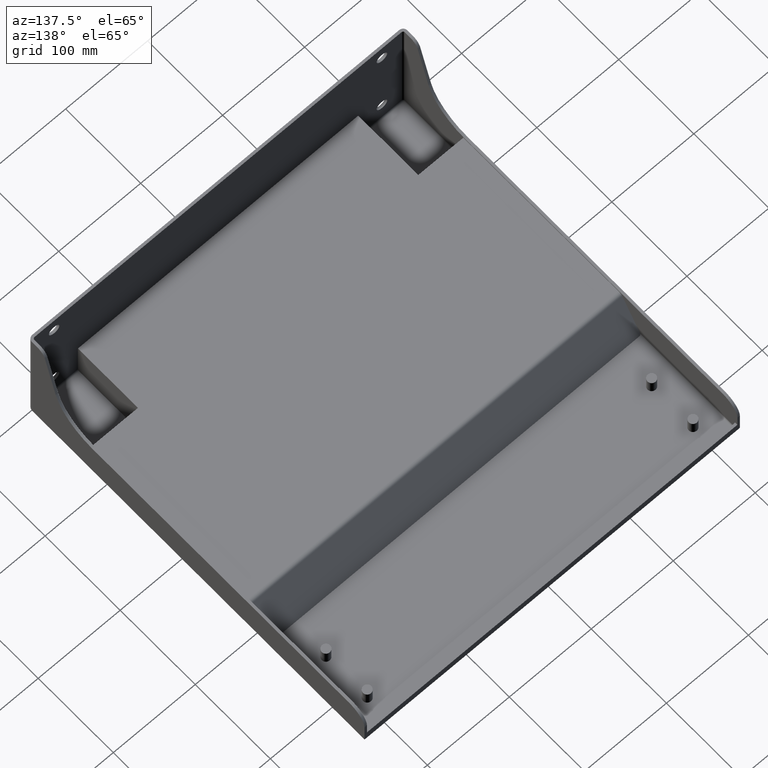
[diagram: clean part render]
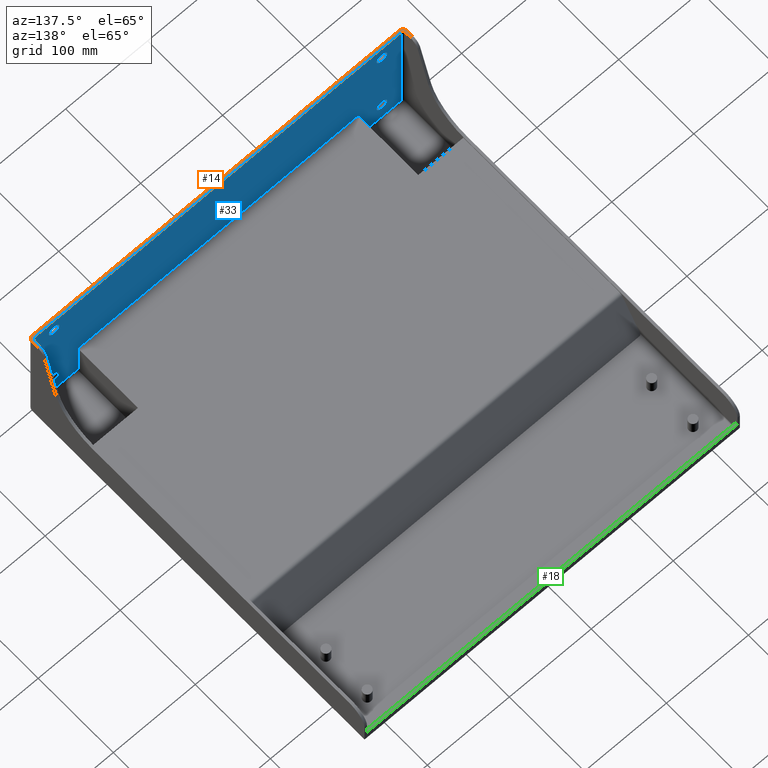
[diagram: same view with three faces highlighted in distinct colors, each labeled with its STEP entity id]
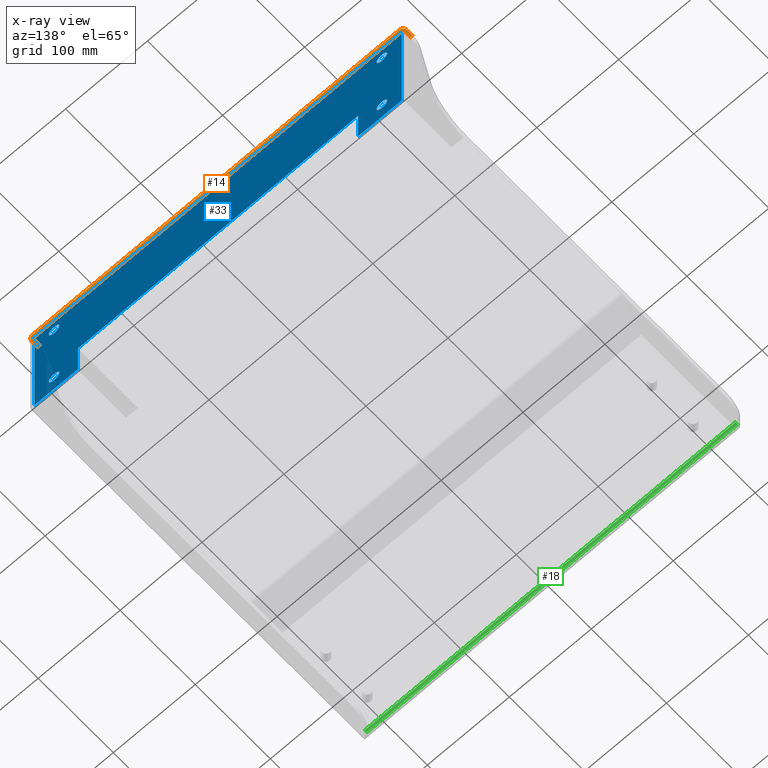
[diagram: x-ray of the same camera — body ghosted, the three highlighted faces saturated]
A machine part, auxiliary view with three faces highlighted in distinct colors.
The next image is the same camera in x-ray (body ghosted, the three faces saturated) — at least one of them is partly hidden behind the body in this view.
Their STEP definitions:

[orange] entity #14 — the highlighted planar face has unit normal (0, 0, -1).
#14 = ADVANCED_FACE ( 'NONE', ( #1697 ), #1041, .F. ) ;
#77 = EDGE_CURVE ( 'NONE', #1845, #1813, #835, .T. ) ;
#122 = CARTESIAN_POINT ( 'NONE',  ( -226.0000000000000000, 4.999999999999980500, 150.0000000000000000 ) ) ;
#125 = CARTESIAN_POINT ( 'NONE',  ( -229.0000000000000000, 12.32673012021039400, 150.0000000000000000 ) ) ;
#182 = LINE ( 'NONE', #751, #185 ) ;
#185 = VECTOR ( 'NONE', #752, 1000.000000000000000 ) ;
#230 = AXIS2_PLACEMENT_3D ( 'NONE', #1345, #1346, #1347 ) ;
#234 = AXIS2_PLACEMENT_3D ( 'NONE', #1340, #1341, #1342 ) ;
#236 = AXIS2_PLACEMENT_3D ( 'NONE', #1350, #1351, #1352 ) ;
#237 = AXIS2_PLACEMENT_3D ( 'NONE', #1355, #1356, #1357 ) ;
#251 = EDGE_CURVE ( 'NONE', #1845, #1818, #859, .T. ) ;
#252 = EDGE_CURVE ( 'NONE', #1844, #1818, #855, .T. ) ;
#253 = EDGE_CURVE ( 'NONE', #2133, #1878, #862, .T. ) ;
#254 = EDGE_CURVE ( 'NONE', #1880, #2146, #864, .T. ) ;
#255 = EDGE_CURVE ( 'NONE', #2149, #2134, #865, .T. ) ;
#256 = EDGE_CURVE ( 'NONE', #2134, #1813, #866, .T. ) ;
#357 = CARTESIAN_POINT ( 'NONE',  ( -223.9999999999998900, -1.836909530733565600E-014, 150.0000000000000000 ) ) ;
#366 = CARTESIAN_POINT ( 'NONE',  ( 229.0000000000000000, 4.999999999999980500, 150.0000000000000000 ) ) ;
#391 = CARTESIAN_POINT ( 'NONE',  ( 229.0000000000000000, 12.32673012021039400, 150.0000000000000000 ) ) ;
#392 = CARTESIAN_POINT ( 'NONE',  ( 224.0000000000000000, -1.836909530733565600E-014, 150.0000000000000000 ) ) ;
#425 = CARTESIAN_POINT ( 'NONE',  ( 224.0000000000000000, 2.999999999999981300, 149.9999999999999700 ) ) ;
#427 = CARTESIAN_POINT ( 'NONE',  ( -224.0000000000000000, 2.999999999999981300, 149.9999999999999700 ) ) ;
#429 = CARTESIAN_POINT ( 'NONE',  ( 226.0000000000000000, 12.32673012021039400, 150.0000000000000000 ) ) ;
#455 = CARTESIAN_POINT ( 'NONE',  ( -229.0000000000000000, 4.999999999999980500, 150.0000000000000000 ) ) ;
#457 = CARTESIAN_POINT ( 'NONE',  ( 226.0000000000000000, 4.999999999999980500, 150.0000000000000000 ) ) ;
#460 = CARTESIAN_POINT ( 'NONE',  ( -226.0000000000000000, 12.32673012021039400, 150.0000000000000000 ) ) ;
#478 = EDGE_CURVE ( 'NONE', #1878, #1880, #953, .T. ) ;
#498 = EDGE_CURVE ( 'NONE', #2138, #2146, #982, .T. ) ;
#511 = EDGE_CURVE ( 'NONE', #1844, #1882, #1006, .T. ) ;
#513 = EDGE_CURVE ( 'NONE', #2138, #2149, #1016, .T. ) ;
#550 = EDGE_CURVE ( 'NONE', #1882, #2133, #182, .T. ) ;
#603 = AXIS2_PLACEMENT_3D ( 'NONE', #1042, #1046, #1044 ) ;
#646 = CARTESIAN_POINT ( 'NONE',  ( 229.0000000000000000, 12.32673012021039400, 150.0000000000000000 ) ) ;
#652 = DIRECTION ( 'NONE',  ( -1.000000000000000000, 0.0000000000000000000, 0.0000000000000000000 ) ) ;
#658 = CARTESIAN_POINT ( 'NONE',  ( 229.0000000000000000, 12.32673012021039400, 150.0000000000000000 ) ) ;
#660 = DIRECTION ( 'NONE',  ( -1.000000000000000000, 0.0000000000000000000, 0.0000000000000000000 ) ) ;
#751 = CARTESIAN_POINT ( 'NONE',  ( 226.0000000000000000, 19.99999999999998200, 150.0000000000000000 ) ) ;
#752 = DIRECTION ( 'NONE',  ( 0.0000000000000000000, -1.000000000000000000, 0.0000000000000000000 ) ) ;
#835 = LINE ( 'NONE', #1316, #838 ) ;
#838 = VECTOR ( 'NONE', #1317, 1000.000000000000000 ) ;
#855 = LINE ( 'NONE', #1339, #863 ) ;
#859 = CIRCLE ( 'NONE', #234, 5.000000000000004400 ) ;
#862 = CIRCLE ( 'NONE', #230, 2.000000000000001800 ) ;
#863 = VECTOR ( 'NONE', #1334, 1000.000000000000000 ) ;
#864 = CIRCLE ( 'NONE', #236, 2.000000000000001800 ) ;
#865 = LINE ( 'NONE', #1343, #867 ) ;
#866 = CIRCLE ( 'NONE', #237, 5.000000000000004400 ) ;
#867 = VECTOR ( 'NONE', #1344, 1000.000000000000000 ) ;
#953 = LINE ( 'NONE', #1094, #955 ) ;
#955 = VECTOR ( 'NONE', #1101, 1000.000000000000000 ) ;
#982 = LINE ( 'NONE', #1152, #989 ) ;
#989 = VECTOR ( 'NONE', #1143, 1000.000000000000000 ) ;
#1006 = LINE ( 'NONE', #646, #1015 ) ;
#1015 = VECTOR ( 'NONE', #660, 1000.000000000000000 ) ;
#1016 = LINE ( 'NONE', #658, #1018 ) ;
#1018 = VECTOR ( 'NONE', #652, 1000.000000000000000 ) ;
#1041 = PLANE ( 'NONE',  #603 ) ;
#1042 = CARTESIAN_POINT ( 'NONE',  ( 229.0000000000000000, 19.99999999999998200, 150.0000000000000000 ) ) ;
#1044 = DIRECTION ( 'NONE',  ( -1.000000000000000000, 0.0000000000000000000, -0.0000000000000000000 ) ) ;
#1046 = DIRECTION ( 'NONE',  ( 0.0000000000000000000, 0.0000000000000000000, -1.000000000000000000 ) ) ;
#1094 = CARTESIAN_POINT ( 'NONE',  ( 229.0000000000000000, 2.999999999999981300, 149.9999999999999700 ) ) ;
#1101 = DIRECTION ( 'NONE',  ( -1.000000000000000000, 0.0000000000000000000, 0.0000000000000000000 ) ) ;
#1143 = DIRECTION ( 'NONE',  ( 0.0000000000000000000, -1.000000000000000000, 0.0000000000000000000 ) ) ;
#1152 = CARTESIAN_POINT ( 'NONE',  ( -226.0000000000000000, 19.99999999999998200, 150.0000000000000000 ) ) ;
#1316 = CARTESIAN_POINT ( 'NONE',  ( 229.0000000000000000, -1.836909530733565600E-014, 150.0000000000000000 ) ) ;
#1317 = DIRECTION ( 'NONE',  ( -1.000000000000000000, -0.0000000000000000000, -0.0000000000000000000 ) ) ;
#1334 = DIRECTION ( 'NONE',  ( 0.0000000000000000000, -1.000000000000000000, 0.0000000000000000000 ) ) ;
#1339 = CARTESIAN_POINT ( 'NONE',  ( 229.0000000000000000, 19.99999999999998200, 150.0000000000000000 ) ) ;
#1340 = CARTESIAN_POINT ( 'NONE',  ( 224.0000000000000000, 4.999999999999981300, 150.0000000000000000 ) ) ;
#1341 = DIRECTION ( 'NONE',  ( -0.0000000000000000000, -0.0000000000000000000, 1.000000000000000000 ) ) ;
#1342 = DIRECTION ( 'NONE',  ( -1.000000000000000000, 0.0000000000000000000, 0.0000000000000000000 ) ) ;
#1343 = CARTESIAN_POINT ( 'NONE',  ( -229.0000000000000000, 19.99999999999998200, 150.0000000000000000 ) ) ;
#1344 = DIRECTION ( 'NONE',  ( 0.0000000000000000000, -1.000000000000000000, 0.0000000000000000000 ) ) ;
#1345 = CARTESIAN_POINT ( 'NONE',  ( 224.0000000000000000, 4.999999999999981300, 150.0000000000000000 ) ) ;
#1346 = DIRECTION ( 'NONE',  ( 0.0000000000000000000, 0.0000000000000000000, -1.000000000000000000 ) ) ;
#1347 = DIRECTION ( 'NONE',  ( -1.000000000000000000, 0.0000000000000000000, 0.0000000000000000000 ) ) ;
#1350 = CARTESIAN_POINT ( 'NONE',  ( -224.0000000000000000, 4.999999999999981300, 150.0000000000000000 ) ) ;
#1351 = DIRECTION ( 'NONE',  ( 0.0000000000000000000, 0.0000000000000000000, -1.000000000000000000 ) ) ;
#1352 = DIRECTION ( 'NONE',  ( -1.000000000000000000, 0.0000000000000000000, 0.0000000000000000000 ) ) ;
#1355 = CARTESIAN_POINT ( 'NONE',  ( -224.0000000000000000, 4.999999999999981300, 150.0000000000000000 ) ) ;
#1356 = DIRECTION ( 'NONE',  ( -0.0000000000000000000, -0.0000000000000000000, 1.000000000000000000 ) ) ;
#1357 = DIRECTION ( 'NONE',  ( -1.000000000000000000, 0.0000000000000000000, 0.0000000000000000000 ) ) ;
#1605 = ORIENTED_EDGE ( 'NONE', *, *, #256, .T. ) ;
#1608 = ORIENTED_EDGE ( 'NONE', *, *, #255, .T. ) ;
#1609 = ORIENTED_EDGE ( 'NONE', *, *, #513, .T. ) ;
#1665 = EDGE_LOOP ( 'NONE', ( #2060, #2057, #2062, #2061, #2055, #2054, #2058, #2059, #2056, #1609, #1608, #1605 ) ) ;
#1697 = FACE_OUTER_BOUND ( 'NONE', #1665, .T. ) ;
#1813 = VERTEX_POINT ( 'NONE', #357 ) ;
#1818 = VERTEX_POINT ( 'NONE', #366 ) ;
#1844 = VERTEX_POINT ( 'NONE', #391 ) ;
#1845 = VERTEX_POINT ( 'NONE', #392 ) ;
#1878 = VERTEX_POINT ( 'NONE', #425 ) ;
#1880 = VERTEX_POINT ( 'NONE', #427 ) ;
#1882 = VERTEX_POINT ( 'NONE', #429 ) ;
#2054 = ORIENTED_EDGE ( 'NONE', *, *, #253, .T. ) ;
#2055 = ORIENTED_EDGE ( 'NONE', *, *, #550, .T. ) ;
#2056 = ORIENTED_EDGE ( 'NONE', *, *, #498, .F. ) ;
#2057 = ORIENTED_EDGE ( 'NONE', *, *, #251, .T. ) ;
#2058 = ORIENTED_EDGE ( 'NONE', *, *, #478, .T. ) ;
#2059 = ORIENTED_EDGE ( 'NONE', *, *, #254, .T. ) ;
#2060 = ORIENTED_EDGE ( 'NONE', *, *, #77, .F. ) ;
#2061 = ORIENTED_EDGE ( 'NONE', *, *, #511, .T. ) ;
#2062 = ORIENTED_EDGE ( 'NONE', *, *, #252, .F. ) ;
#2133 = VERTEX_POINT ( 'NONE', #457 ) ;
#2134 = VERTEX_POINT ( 'NONE', #455 ) ;
#2138 = VERTEX_POINT ( 'NONE', #460 ) ;
#2146 = VERTEX_POINT ( 'NONE', #122 ) ;
#2149 = VERTEX_POINT ( 'NONE', #125 ) ;

[blue] entity #33 — the highlighted planar face has unit normal (-0, 1, 0).
#33 = ADVANCED_FACE ( 'NONE', ( #1720, #761, #757, #1722, #759 ), #586, .T. ) ;
#83 = AXIS2_PLACEMENT_3D ( 'NONE', #1098, #1099, #1100 ) ;
#84 = AXIS2_PLACEMENT_3D ( 'NONE', #1102, #1103, #1104 ) ;
#85 = AXIS2_PLACEMENT_3D ( 'NONE', #1105, #1106, #1107 ) ;
#101 = AXIS2_PLACEMENT_3D ( 'NONE', #703, #704, #705 ) ;
#105 = AXIS2_PLACEMENT_3D ( 'NONE', #722, #723, #724 ) ;
#121 = CARTESIAN_POINT ( 'NONE',  ( 171.0000000000000300, 2.999999999999981800, 48.99999999999992900 ) ) ;
#153 = CIRCLE ( 'NONE', #105, 6.500000000000019500 ) ;
#306 = EDGE_CURVE ( 'NONE', #1857, #1867, #926, .T. ) ;
#307 = EDGE_CURVE ( 'NONE', #1851, #1866, #924, .T. ) ;
#373 = CARTESIAN_POINT ( 'NONE',  ( 200.0000000000000000, 2.999999999999996400, 23.49999999999998200 ) ) ;
#390 = CARTESIAN_POINT ( 'NONE',  ( -200.0000000000000000, 2.999999999999994700, 36.49999999999829500 ) ) ;
#398 = CARTESIAN_POINT ( 'NONE',  ( -200.0000000000003400, 2.999999999999984500, 123.4999999999972100 ) ) ;
#404 = CARTESIAN_POINT ( 'NONE',  ( 200.0000000000000000, 2.999999999999984500, 123.5000000000003700 ) ) ;
#413 = CARTESIAN_POINT ( 'NONE',  ( -200.0000000000003400, 2.999999999999982700, 136.4999999999972400 ) ) ;
#414 = CARTESIAN_POINT ( 'NONE',  ( 200.0000000000000000, 2.999999999999982700, 136.4999999999997200 ) ) ;
#415 = CARTESIAN_POINT ( 'NONE',  ( 200.0000000000000000, 2.999999999999994700, 36.50000000000002100 ) ) ;
#420 = CARTESIAN_POINT ( 'NONE',  ( -170.9999999999999700, 3.000000000000002700, 48.99999999999992900 ) ) ;
#424 = CARTESIAN_POINT ( 'NONE',  ( -170.9999999999999700, 3.000000000000002700, 5.000000000000004400 ) ) ;
#425 = CARTESIAN_POINT ( 'NONE',  ( 224.0000000000000000, 2.999999999999981300, 149.9999999999999700 ) ) ;
#427 = CARTESIAN_POINT ( 'NONE',  ( -224.0000000000000000, 2.999999999999981300, 149.9999999999999700 ) ) ;
#430 = CARTESIAN_POINT ( 'NONE',  ( 224.0000000000000000, 2.999999999999999100, 4.999999999999998200 ) ) ;
#431 = CARTESIAN_POINT ( 'NONE',  ( 171.0000000000000300, 2.999999999999981800, 5.000000000000004400 ) ) ;
#433 = CARTESIAN_POINT ( 'NONE',  ( -224.0000000000000000, 2.999999999999999100, 4.999999999999998200 ) ) ;
#453 = CARTESIAN_POINT ( 'NONE',  ( -200.0000000000000000, 2.999999999999996400, 23.49999999999915400 ) ) ;
#471 = EDGE_CURVE ( 'NONE', #2145, #1873, #942, .T. ) ;
#474 = EDGE_CURVE ( 'NONE', #1868, #1826, #948, .T. ) ;
#475 = EDGE_CURVE ( 'NONE', #1843, #2130, #950, .T. ) ;
#476 = EDGE_CURVE ( 'NONE', #1867, #1857, #944, .T. ) ;
#477 = EDGE_CURVE ( 'NONE', #1866, #1851, #951, .T. ) ;
#478 = EDGE_CURVE ( 'NONE', #1878, #1880, #953, .T. ) ;
#479 = EDGE_CURVE ( 'NONE', #1878, #1883, #954, .T. ) ;
#480 = EDGE_CURVE ( 'NONE', #1883, #1884, #956, .T. ) ;
#481 = EDGE_CURVE ( 'NONE', #2145, #1884, #958, .T. ) ;
#482 = EDGE_CURVE ( 'NONE', #1873, #1877, #960, .T. ) ;
#483 = EDGE_CURVE ( 'NONE', #1877, #1886, #962, .T. ) ;
#484 = EDGE_CURVE ( 'NONE', #1886, #1880, #964, .T. ) ;
#529 = EDGE_CURVE ( 'NONE', #2130, #1843, #1038, .T. ) ;
#535 = EDGE_CURVE ( 'NONE', #1826, #1868, #153, .T. ) ;
#586 = PLANE ( 'NONE',  #622 ) ;
#587 = DIRECTION ( 'NONE',  ( 0.0000000000000000000, -1.224606353822377500E-016, 1.000000000000000000 ) ) ;
#589 = DIRECTION ( 'NONE',  ( -0.0000000000000000000, 1.000000000000000000, 1.224606353822377500E-016 ) ) ;
#599 = CARTESIAN_POINT ( 'NONE',  ( 229.0000000000000000, 2.999999999999999600, 3.673819061467131800E-016 ) ) ;
#622 = AXIS2_PLACEMENT_3D ( 'NONE', #599, #589, #587 ) ;
#703 = CARTESIAN_POINT ( 'NONE',  ( -200.0000000000000000, 2.999999999999995600, 29.99999999999872500 ) ) ;
#704 = DIRECTION ( 'NONE',  ( -0.0000000000000000000, 1.000000000000000000, 1.224606353822377500E-016 ) ) ;
#705 = DIRECTION ( 'NONE',  ( 0.0000000000000000000, -1.334402673828401100E-016, 1.000000000000000000 ) ) ;
#722 = CARTESIAN_POINT ( 'NONE',  ( 200.0000000000000000, 2.999999999999995600, 30.00000000000000000 ) ) ;
#723 = DIRECTION ( 'NONE',  ( -0.0000000000000000000, 1.000000000000000000, 1.224606353822377500E-016 ) ) ;
#724 = DIRECTION ( 'NONE',  ( 0.0000000000000000000, -1.334402673828309100E-016, 1.000000000000000000 ) ) ;
#757 = FACE_BOUND ( 'NONE', #1613, .T. ) ;
#759 = FACE_OUTER_BOUND ( 'NONE', #1388, .T. ) ;
#761 = FACE_BOUND ( 'NONE', #1401, .T. ) ;
#924 = CIRCLE ( 'NONE', #1555, 6.500000000000005300 ) ;
#926 = CIRCLE ( 'NONE', #1554, 6.499999999999673200 ) ;
#942 = LINE ( 'NONE', #1089, #945 ) ;
#944 = CIRCLE ( 'NONE', #84, 6.499999999999673200 ) ;
#945 = VECTOR ( 'NONE', #1090, 1000.000000000000000 ) ;
#948 = CIRCLE ( 'NONE', #1557, 6.500000000000019500 ) ;
#950 = CIRCLE ( 'NONE', #83, 6.499999999999571900 ) ;
#951 = CIRCLE ( 'NONE', #85, 6.500000000000005300 ) ;
#953 = LINE ( 'NONE', #1094, #955 ) ;
#954 = LINE ( 'NONE', #1108, #957 ) ;
#955 = VECTOR ( 'NONE', #1101, 1000.000000000000000 ) ;
#956 = LINE ( 'NONE', #1110, #959 ) ;
#957 = VECTOR ( 'NONE', #1109, 1000.000000000000000 ) ;
#958 = LINE ( 'NONE', #1112, #961 ) ;
#959 = VECTOR ( 'NONE', #1111, 1000.000000000000000 ) ;
#960 = LINE ( 'NONE', #1114, #963 ) ;
#961 = VECTOR ( 'NONE', #1113, 1000.000000000000000 ) ;
#962 = LINE ( 'NONE', #1116, #965 ) ;
#963 = VECTOR ( 'NONE', #1115, 1000.000000000000000 ) ;
#964 = LINE ( 'NONE', #1118, #967 ) ;
#965 = VECTOR ( 'NONE', #1117, 1000.000000000000000 ) ;
#967 = VECTOR ( 'NONE', #1119, 1000.000000000000000 ) ;
#1038 = CIRCLE ( 'NONE', #101, 6.499999999999571900 ) ;
#1066 = CARTESIAN_POINT ( 'NONE',  ( 200.0000000000000000, 2.999999999999983600, 130.0000000000000300 ) ) ;
#1067 = DIRECTION ( 'NONE',  ( -0.0000000000000000000, 1.000000000000000000, 1.224606353822377500E-016 ) ) ;
#1068 = DIRECTION ( 'NONE',  ( 0.0000000000000000000, -1.334402673828380100E-016, 1.000000000000000000 ) ) ;
#1071 = CARTESIAN_POINT ( 'NONE',  ( -200.0000000000003400, 2.999999999999983600, 129.9999999999972100 ) ) ;
#1072 = DIRECTION ( 'NONE',  ( -0.0000000000000000000, 1.000000000000000000, 1.224606353822377500E-016 ) ) ;
#1073 = DIRECTION ( 'NONE',  ( 0.0000000000000000000, -1.334402673828312100E-016, 1.000000000000000000 ) ) ;
#1089 = CARTESIAN_POINT ( 'NONE',  ( -170.9999999999999700, 3.000000000000002700, 48.99999999999992900 ) ) ;
#1090 = DIRECTION ( 'NONE',  ( -1.000000000000000000, 6.086749038515113000E-017, 8.421689120843096600E-033 ) ) ;
#1094 = CARTESIAN_POINT ( 'NONE',  ( 229.0000000000000000, 2.999999999999981300, 149.9999999999999700 ) ) ;
#1095 = CARTESIAN_POINT ( 'NONE',  ( 200.0000000000000000, 2.999999999999995600, 30.00000000000000000 ) ) ;
#1096 = DIRECTION ( 'NONE',  ( -0.0000000000000000000, 1.000000000000000000, 1.224606353822377500E-016 ) ) ;
#1097 = DIRECTION ( 'NONE',  ( 0.0000000000000000000, -1.334402673828309100E-016, 1.000000000000000000 ) ) ;
#1098 = CARTESIAN_POINT ( 'NONE',  ( -200.0000000000000000, 2.999999999999995600, 29.99999999999872500 ) ) ;
#1099 = DIRECTION ( 'NONE',  ( -0.0000000000000000000, 1.000000000000000000, 1.224606353822377500E-016 ) ) ;
#1100 = DIRECTION ( 'NONE',  ( 0.0000000000000000000, -1.334402673828401100E-016, 1.000000000000000000 ) ) ;
#1101 = DIRECTION ( 'NONE',  ( -1.000000000000000000, 0.0000000000000000000, 0.0000000000000000000 ) ) ;
#1102 = CARTESIAN_POINT ( 'NONE',  ( 200.0000000000000000, 2.999999999999983600, 130.0000000000000300 ) ) ;
#1103 = DIRECTION ( 'NONE',  ( -0.0000000000000000000, 1.000000000000000000, 1.224606353822377500E-016 ) ) ;
#1104 = DIRECTION ( 'NONE',  ( 0.0000000000000000000, -1.334402673828380100E-016, 1.000000000000000000 ) ) ;
#1105 = CARTESIAN_POINT ( 'NONE',  ( -200.0000000000003400, 2.999999999999983600, 129.9999999999972100 ) ) ;
#1106 = DIRECTION ( 'NONE',  ( -0.0000000000000000000, 1.000000000000000000, 1.224606353822377500E-016 ) ) ;
#1107 = DIRECTION ( 'NONE',  ( 0.0000000000000000000, -1.334402673828312100E-016, 1.000000000000000000 ) ) ;
#1108 = CARTESIAN_POINT ( 'NONE',  ( 224.0000000000000000, 2.999999999999999600, 3.673819061467131800E-016 ) ) ;
#1109 = DIRECTION ( 'NONE',  ( 0.0000000000000000000, 1.224606353822377500E-016, -1.000000000000000000 ) ) ;
#1110 = CARTESIAN_POINT ( 'NONE',  ( 171.0000000000000300, 2.999999999999999100, 4.999999999999998200 ) ) ;
#1111 = DIRECTION ( 'NONE',  ( -1.000000000000000000, 0.0000000000000000000, 0.0000000000000000000 ) ) ;
#1112 = CARTESIAN_POINT ( 'NONE',  ( 171.0000000000000300, 2.999999999999981800, 603.8086312075680600 ) ) ;
#1113 = DIRECTION ( 'NONE',  ( -0.0000000000000000000, -0.0000000000000000000, -1.000000000000000000 ) ) ;
#1114 = CARTESIAN_POINT ( 'NONE',  ( -170.9999999999999700, 3.000000000000002700, 603.8086312075680600 ) ) ;
#1115 = DIRECTION ( 'NONE',  ( -0.0000000000000000000, -0.0000000000000000000, -1.000000000000000000 ) ) ;
#1116 = CARTESIAN_POINT ( 'NONE',  ( -226.0000000000000000, 2.999999999999999100, 4.999999999999998200 ) ) ;
#1117 = DIRECTION ( 'NONE',  ( -1.000000000000000000, 0.0000000000000000000, 0.0000000000000000000 ) ) ;
#1118 = CARTESIAN_POINT ( 'NONE',  ( -224.0000000000000000, 2.999999999999981300, 150.0000000000000000 ) ) ;
#1119 = DIRECTION ( 'NONE',  ( -0.0000000000000000000, -1.224606353822377500E-016, 1.000000000000000000 ) ) ;
#1388 = EDGE_LOOP ( 'NONE', ( #1939, #1919, #1931, #1937, #1922, #1928, #1920, #1943 ) ) ;
#1401 = EDGE_LOOP ( 'NONE', ( #2008, #1938 ) ) ;
#1437 = EDGE_LOOP ( 'NONE', ( #1941, #1934 ) ) ;
#1554 = AXIS2_PLACEMENT_3D ( 'NONE', #1066, #1067, #1068 ) ;
#1555 = AXIS2_PLACEMENT_3D ( 'NONE', #1071, #1072, #1073 ) ;
#1557 = AXIS2_PLACEMENT_3D ( 'NONE', #1095, #1096, #1097 ) ;
#1613 = EDGE_LOOP ( 'NONE', ( #1940, #1930 ) ) ;
#1720 = FACE_BOUND ( 'NONE', #2125, .T. ) ;
#1722 = FACE_BOUND ( 'NONE', #1437, .T. ) ;
#1826 = VERTEX_POINT ( 'NONE', #373 ) ;
#1843 = VERTEX_POINT ( 'NONE', #390 ) ;
#1851 = VERTEX_POINT ( 'NONE', #398 ) ;
#1857 = VERTEX_POINT ( 'NONE', #404 ) ;
#1866 = VERTEX_POINT ( 'NONE', #413 ) ;
#1867 = VERTEX_POINT ( 'NONE', #414 ) ;
#1868 = VERTEX_POINT ( 'NONE', #415 ) ;
#1873 = VERTEX_POINT ( 'NONE', #420 ) ;
#1877 = VERTEX_POINT ( 'NONE', #424 ) ;
#1878 = VERTEX_POINT ( 'NONE', #425 ) ;
#1880 = VERTEX_POINT ( 'NONE', #427 ) ;
#1883 = VERTEX_POINT ( 'NONE', #430 ) ;
#1884 = VERTEX_POINT ( 'NONE', #431 ) ;
#1886 = VERTEX_POINT ( 'NONE', #433 ) ;
#1919 = ORIENTED_EDGE ( 'NONE', *, *, #479, .T. ) ;
#1920 = ORIENTED_EDGE ( 'NONE', *, *, #483, .T. ) ;
#1922 = ORIENTED_EDGE ( 'NONE', *, *, #471, .T. ) ;
#1928 = ORIENTED_EDGE ( 'NONE', *, *, #482, .T. ) ;
#1930 = ORIENTED_EDGE ( 'NONE', *, *, #476, .F. ) ;
#1931 = ORIENTED_EDGE ( 'NONE', *, *, #480, .T. ) ;
#1934 = ORIENTED_EDGE ( 'NONE', *, *, #477, .F. ) ;
#1937 = ORIENTED_EDGE ( 'NONE', *, *, #481, .F. ) ;
#1938 = ORIENTED_EDGE ( 'NONE', *, *, #475, .F. ) ;
#1939 = ORIENTED_EDGE ( 'NONE', *, *, #478, .F. ) ;
#1940 = ORIENTED_EDGE ( 'NONE', *, *, #306, .F. ) ;
#1941 = ORIENTED_EDGE ( 'NONE', *, *, #307, .F. ) ;
#1943 = ORIENTED_EDGE ( 'NONE', *, *, #484, .T. ) ;
#2008 = ORIENTED_EDGE ( 'NONE', *, *, #529, .F. ) ;
#2019 = ORIENTED_EDGE ( 'NONE', *, *, #535, .F. ) ;
#2035 = ORIENTED_EDGE ( 'NONE', *, *, #474, .F. ) ;
#2125 = EDGE_LOOP ( 'NONE', ( #2019, #2035 ) ) ;
#2130 = VERTEX_POINT ( 'NONE', #453 ) ;
#2145 = VERTEX_POINT ( 'NONE', #121 ) ;

[green] entity #18 — the highlighted planar face has unit normal (0, -0, 1).
#18 = ADVANCED_FACE ( 'NONE', ( #1692 ), #1960, .T. ) ;
#124 = CARTESIAN_POINT ( 'NONE',  ( -226.0000000000000000, 445.0000000000000000, 15.00000000000000400 ) ) ;
#193 = LINE ( 'NONE', #330, #196 ) ;
#196 = VECTOR ( 'NONE', #331, 1000.000000000000000 ) ;
#202 = LINE ( 'NONE', #340, #205 ) ;
#205 = VECTOR ( 'NONE', #341, 1000.000000000000000 ) ;
#248 = EDGE_CURVE ( 'NONE', #2132, #1819, #853, .T. ) ;
#330 = CARTESIAN_POINT ( 'NONE',  ( 226.0000000000000000, 445.0000000000000000, 15.00000000000000400 ) ) ;
#331 = DIRECTION ( 'NONE',  ( 0.0000000000000000000, 1.000000000000000000, 0.0000000000000000000 ) ) ;
#340 = CARTESIAN_POINT ( 'NONE',  ( -226.0000000000000000, 448.0000000000000000, 15.00000000000000400 ) ) ;
#341 = DIRECTION ( 'NONE',  ( 0.0000000000000000000, -1.000000000000000000, 0.0000000000000000000 ) ) ;
#367 = CARTESIAN_POINT ( 'NONE',  ( -226.0000000000000000, 448.0000000000000000, 15.00000000000000400 ) ) ;
#445 = CARTESIAN_POINT ( 'NONE',  ( 226.0000000000000000, 445.0000000000000000, 15.00000000000000400 ) ) ;
#454 = CARTESIAN_POINT ( 'NONE',  ( 226.0000000000000000, 448.0000000000000000, 15.00000000000000400 ) ) ;
#503 = EDGE_CURVE ( 'NONE', #2148, #1898, #987, .T. ) ;
#557 = EDGE_CURVE ( 'NONE', #1898, #2132, #193, .T. ) ;
#562 = EDGE_CURVE ( 'NONE', #1819, #2148, #202, .T. ) ;
#607 = AXIS2_PLACEMENT_3D ( 'NONE', #1969, #1980, #1978 ) ;
#853 = LINE ( 'NONE', #1333, #856 ) ;
#856 = VECTOR ( 'NONE', #1335, 1000.000000000000000 ) ;
#987 = LINE ( 'NONE', #1150, #999 ) ;
#999 = VECTOR ( 'NONE', #1165, 1000.000000000000000 ) ;
#1150 = CARTESIAN_POINT ( 'NONE',  ( -226.0000000000000000, 445.0000000000000000, 15.00000000000000400 ) ) ;
#1165 = DIRECTION ( 'NONE',  ( 1.000000000000000000, 0.0000000000000000000, 0.0000000000000000000 ) ) ;
#1333 = CARTESIAN_POINT ( 'NONE',  ( 226.0000000000000000, 448.0000000000000000, 15.00000000000000400 ) ) ;
#1335 = DIRECTION ( 'NONE',  ( -1.000000000000000000, 0.0000000000000000000, 0.0000000000000000000 ) ) ;
#1661 = EDGE_LOOP ( 'NONE', ( #2046, #1667, #1669, #1670 ) ) ;
#1667 = ORIENTED_EDGE ( 'NONE', *, *, #248, .T. ) ;
#1669 = ORIENTED_EDGE ( 'NONE', *, *, #562, .T. ) ;
#1670 = ORIENTED_EDGE ( 'NONE', *, *, #503, .T. ) ;
#1692 = FACE_OUTER_BOUND ( 'NONE', #1661, .T. ) ;
#1819 = VERTEX_POINT ( 'NONE', #367 ) ;
#1898 = VERTEX_POINT ( 'NONE', #445 ) ;
#1960 = PLANE ( 'NONE',  #607 ) ;
#1969 = CARTESIAN_POINT ( 'NONE',  ( 226.0000000000000000, 448.0000000000000000, 15.00000000000000400 ) ) ;
#1978 = DIRECTION ( 'NONE',  ( 1.000000000000000000, 0.0000000000000000000, -0.0000000000000000000 ) ) ;
#1980 = DIRECTION ( 'NONE',  ( 0.0000000000000000000, -0.0000000000000000000, 1.000000000000000000 ) ) ;
#2046 = ORIENTED_EDGE ( 'NONE', *, *, #557, .T. ) ;
#2132 = VERTEX_POINT ( 'NONE', #454 ) ;
#2148 = VERTEX_POINT ( 'NONE', #124 ) ;